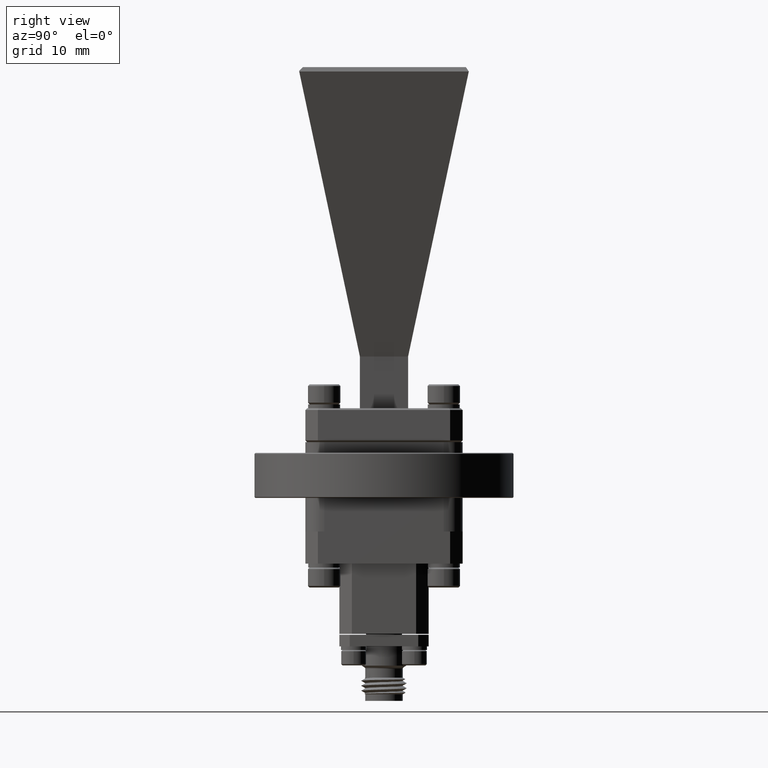
[diagram: clean part render]
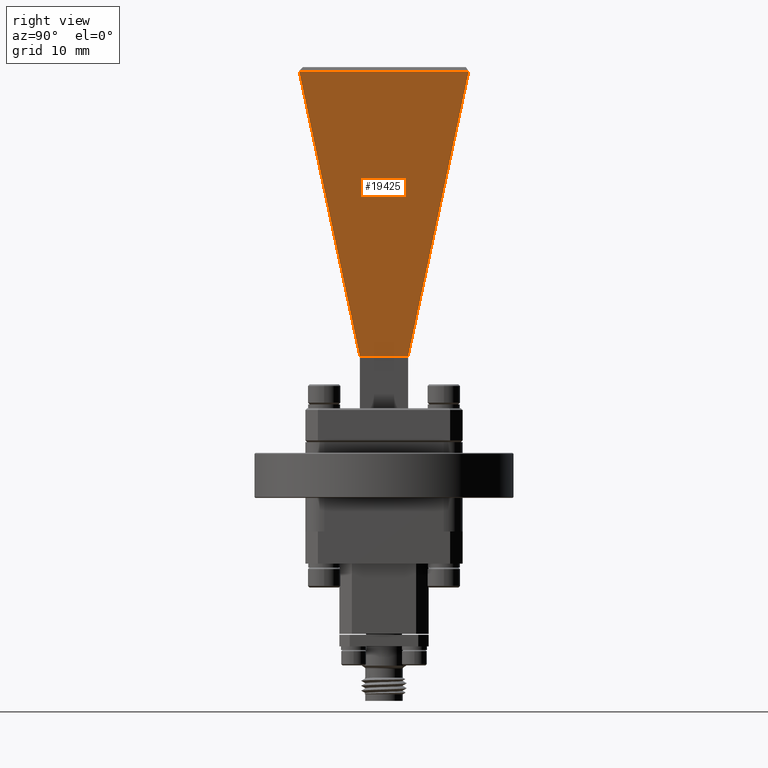
[diagram: same view with one face highlighted and labeled with its STEP entity id]
A machine part, right view. The second image highlights one B-rep face of the part: STEP entity #19425.
In plain terms, the highlighted planar face has unit normal (-0.9658, -0, 0.2593).
Its self-contained STEP definition (entity closure, byte-faithful):
#82 = EDGE_CURVE ( 'NONE', #11597, #17049, #17441, .T. ) ;
#580 = VERTEX_POINT ( 'NONE', #15584 ) ;
#645 = VECTOR ( 'NONE', #6238, 39.37007874015748900 ) ;
#1071 = ORIENTED_EDGE ( 'NONE', *, *, #10834, .T. ) ;
#1793 = CARTESIAN_POINT ( 'NONE',  ( 0.2200000000000003100, -0.1349999999999999800, 1.159999999999999700 ) ) ;
#2337 = EDGE_CURVE ( 'NONE', #11597, #580, #16775, .T. ) ;
#2347 = LINE ( 'NONE', #14025, #645 ) ;
#2784 = DIRECTION ( 'NONE',  ( -0.9657882279462223200, -2.680600818944562600E-016, 0.2593320241707448600 ) ) ;
#4163 = CARTESIAN_POINT ( 'NONE',  ( 0.1325709716113557800, -3.150036357164286600E-017, 0.8344022391043579600 ) ) ;
#4572 = EDGE_LOOP ( 'NONE', ( #10484, #17366, #17922, #11667, #1071 ) ) ;
#5689 = AXIS2_PLACEMENT_3D ( 'NONE', #4163, #2784, #15081 ) ;
#5872 = LINE ( 'NONE', #18312, #15332 ) ;
#6238 = DIRECTION ( 'NONE',  ( 0.2540148692152000000, 0.2014600686879173500, 0.9459864094910900300 ) ) ;
#6304 = EDGE_CURVE ( 'NONE', #13837, #580, #15141, .T. ) ;
#6313 = VECTOR ( 'NONE', #18827, 39.37007874015748900 ) ;
#10388 = PLANE ( 'NONE',  #5689 ) ;
#10484 = ORIENTED_EDGE ( 'NONE', *, *, #13171, .T. ) ;
#10707 = CARTESIAN_POINT ( 'NONE',  ( 0.6485166993957314200, 0.4745935269582662900, 2.755855294301343700 ) ) ;
#10834 = EDGE_CURVE ( 'NONE', #17049, #13263, #2347, .T. ) ;
#10989 = DIRECTION ( 'NONE',  ( -2.775557561562891400E-016, 1.000000000000000000, 0.0000000000000000000 ) ) ;
#11597 = VERTEX_POINT ( 'NONE', #12307 ) ;
#11667 = ORIENTED_EDGE ( 'NONE', *, *, #82, .T. ) ;
#12228 = CARTESIAN_POINT ( 'NONE',  ( 0.6484342745318845100, 0.4747927004908048500, 2.755548332739431700 ) ) ;
#12307 = CARTESIAN_POINT ( 'NONE',  ( 0.2200000000000003600, -0.1350000000000000100, 1.159999999999999700 ) ) ;
#13171 = EDGE_CURVE ( 'NONE', #13263, #13837, #5872, .T. ) ;
#13263 = VERTEX_POINT ( 'NONE', #12228 ) ;
#13837 = VERTEX_POINT ( 'NONE', #10707 ) ;
#14025 = CARTESIAN_POINT ( 'NONE',  ( 0.2200000000000002500, 0.1349999999999999800, 1.159999999999999700 ) ) ;
#14095 = CARTESIAN_POINT ( 'NONE',  ( 0.2200000000000002800, -7.233933487222970400E-018, 1.159999999999999700 ) ) ;
#15081 = DIRECTION ( 'NONE',  ( 0.2593320241707448000, 7.197909606425212700E-017, 0.9657882279462222100 ) ) ;
#15141 = LINE ( 'NONE', #15830, #18112 ) ;
#15332 = VECTOR ( 'NONE', #17004, 39.37007874015748100 ) ;
#15584 = CARTESIAN_POINT ( 'NONE',  ( 0.6485166993957316400, -0.4748580719345453800, 2.755855294301343700 ) ) ;
#15830 = CARTESIAN_POINT ( 'NONE',  ( 0.6485166993957316400, -0.4799999999999998700, 2.755855294301343700 ) ) ;
#16775 = LINE ( 'NONE', #1793, #6313 ) ;
#17004 = DIRECTION ( 'NONE',  ( 0.2197493603224928400, -0.5310079304449771800, 0.8183769280975591300 ) ) ;
#17049 = VERTEX_POINT ( 'NONE', #18593 ) ;
#17366 = ORIENTED_EDGE ( 'NONE', *, *, #6304, .T. ) ;
#17441 = LINE ( 'NONE', #14095, #18664 ) ;
#17545 = DIRECTION ( 'NONE',  ( 2.775557561562891400E-016, -1.000000000000000000, 0.0000000000000000000 ) ) ;
#17922 = ORIENTED_EDGE ( 'NONE', *, *, #2337, .F. ) ;
#18112 = VECTOR ( 'NONE', #17545, 39.37007874015748100 ) ;
#18312 = CARTESIAN_POINT ( 'NONE',  ( 0.6233701932077953000, 0.5353581826058713100, 2.662206236773857300 ) ) ;
#18593 = CARTESIAN_POINT ( 'NONE',  ( 0.2200000000000002200, 0.1350000000000000400, 1.159999999999999700 ) ) ;
#18664 = VECTOR ( 'NONE', #10989, 39.37007874015748100 ) ;
#18827 = DIRECTION ( 'NONE',  ( 0.2540148692152001700, -0.2014600686879172200, 0.9459864094910900300 ) ) ;
#18986 = FACE_OUTER_BOUND ( 'NONE', #4572, .T. ) ;
#19425 = ADVANCED_FACE ( 'NONE', ( #18986 ), #10388, .F. ) ;